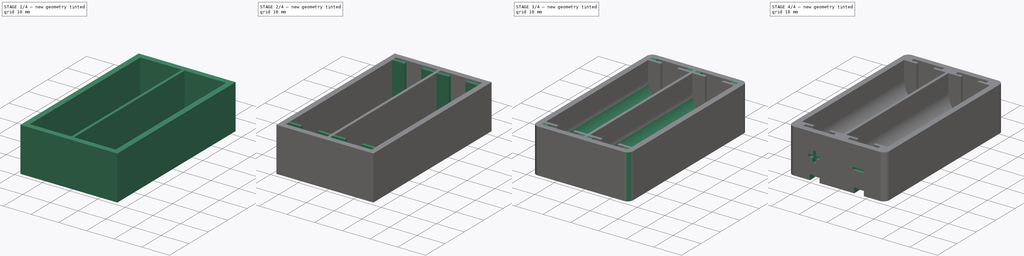
[diagram: build sequence overview — one tinted view per stage of 4, left to right]
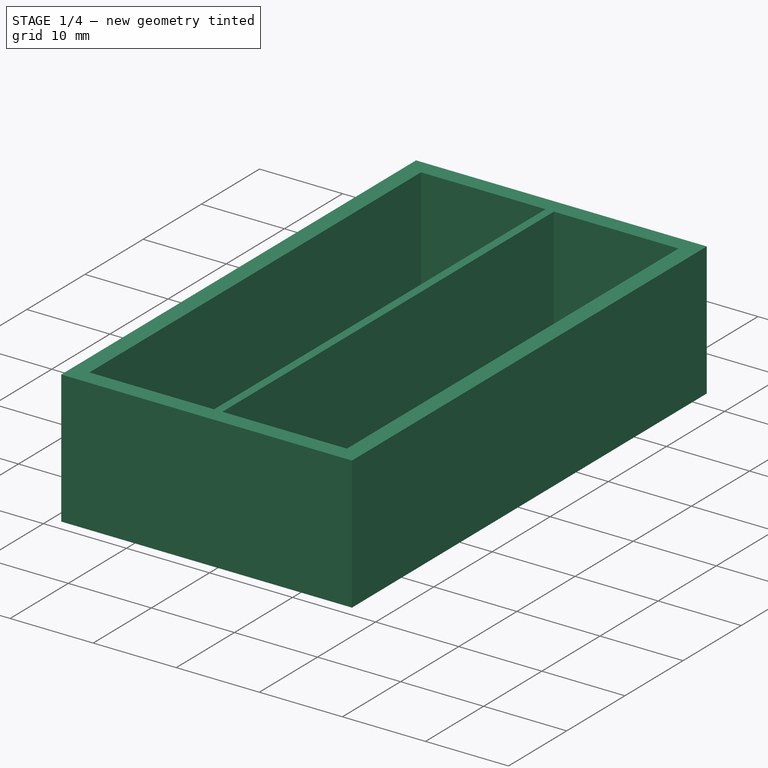
[diagram: stage 1 of 4 — iso view after this stage's code; geometry added in this stage tinted green]
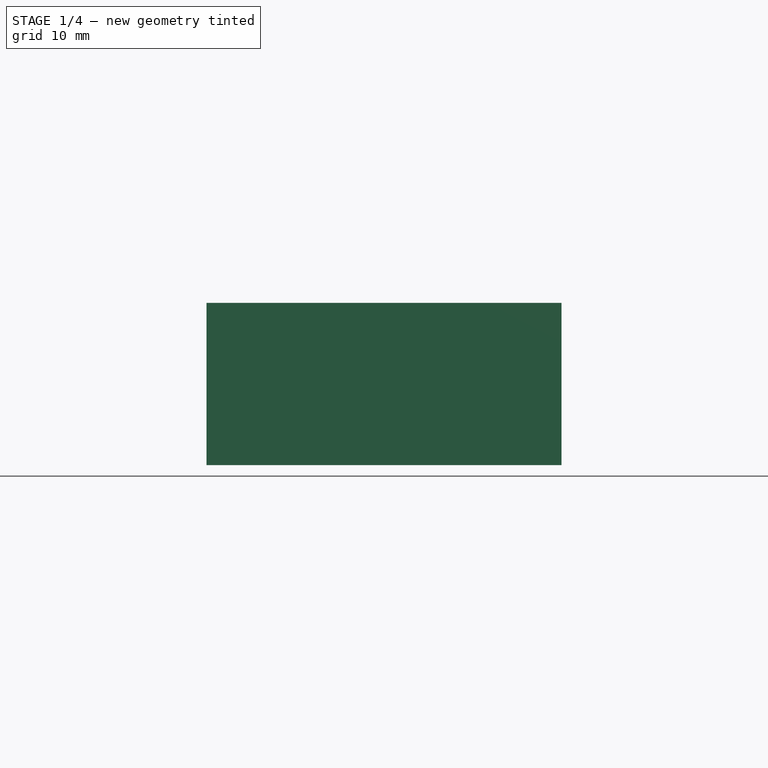
[diagram: stage 1 of 4 — front view after this stage's code; geometry added in this stage tinted green]
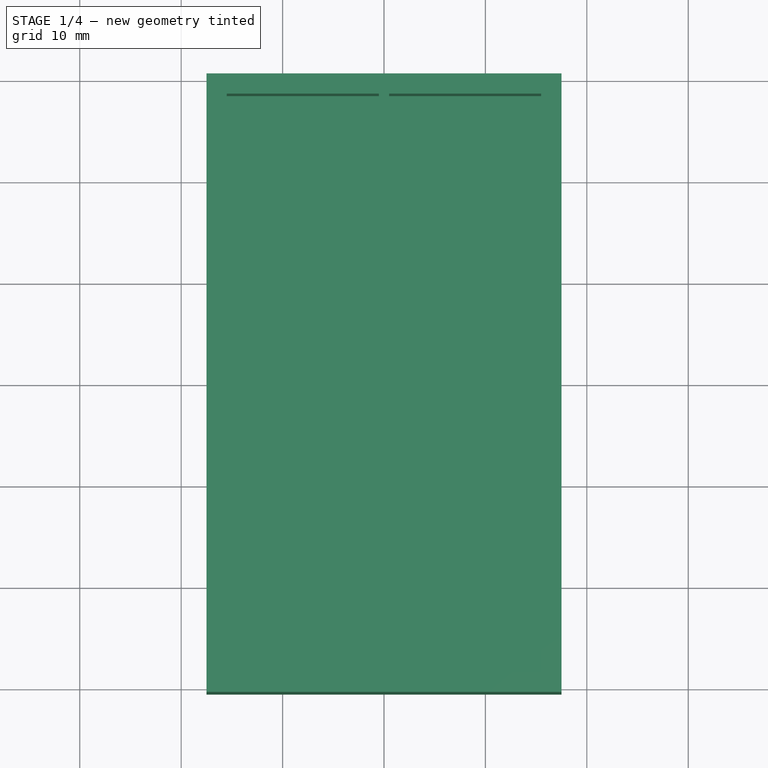
[diagram: stage 1 of 4 — top view after this stage's code; geometry added in this stage tinted green]
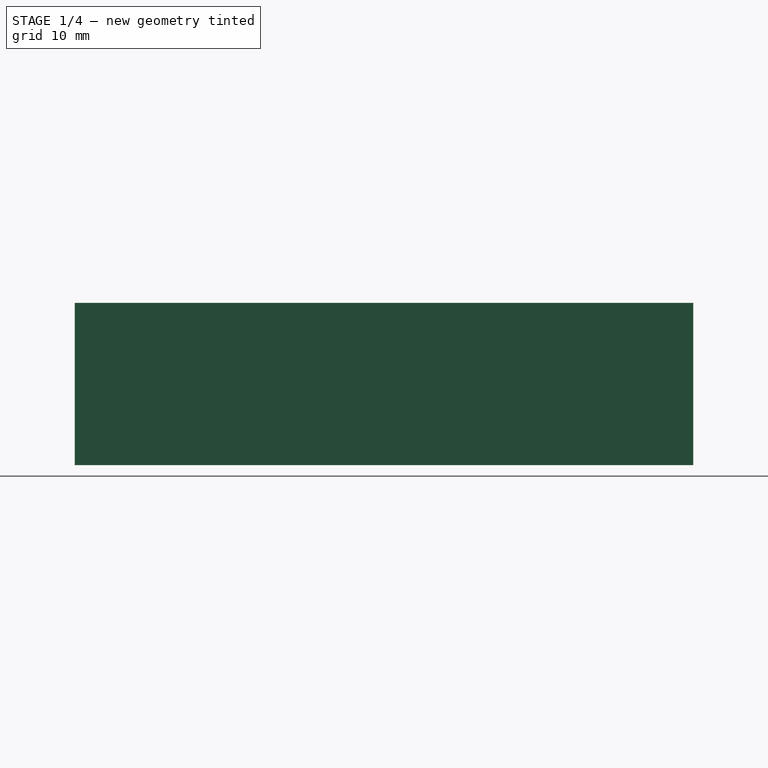
[diagram: stage 1 of 4 — right view after this stage's code; geometry added in this stage tinted green]
FCSTD DOCUMENT  (FreeCAD 1.0R39319 (Git))
Label: 2AA_CAD
License: All rights reserved
LicenseURL: http://en.wikipedia.org/wiki/All_rights_reserved
objects: Sketcher::SketchObject×10, PartDesign::Pad×5, PartDesign::Pocket×5, PartDesign::Fillet×2, PartDesign::Body×1
note: 57 computed .brp shape members not serialized (recipe doc carries the construction recipe); baked Part::Feature solids carry a one-line shape summary decoded from their .brp

FEATURE [Sketcher::SketchObject] Sketch
  ArcFitTolerance = 0
  AttachmentSupport = -> [XY_Plane]
  FullyConstrained = true
  MakeInternals = false
  MapMode = 5
  sketch-geometry (5):
    g0: LineSegment StartX=-17.5 StartY=-30.5 StartZ=0 EndX=-17.5 EndY=30.5 EndZ=0
    g1: LineSegment StartX=-17.5 StartY=30.5 StartZ=0 EndX=17.5 EndY=30.5 EndZ=0
    g2: LineSegment StartX=17.5 StartY=30.5 StartZ=0 EndX=17.5 EndY=-30.5 EndZ=0
    g3: LineSegment StartX=17.5 StartY=-30.5 StartZ=0 EndX=-17.5 EndY=-30.5 EndZ=0
    g4: GeomPoint [constr] X=0 Y=0 Z=0
  constraints (12):
    c: Coincident(g0,g1)
    c: Coincident(g1,g2)
    c: Coincident(g2,g3)
    c: Coincident(g3,g0)
    c: Horizontal(g1)
    c: Horizontal(g3)
    c: Vertical(g0)
    c: Vertical(g2)
    c: Symmetric(g1,g0,g4)
    c: Coincident(g4,g-1)
    c: DistanceX(g1,g1) = 35
    c: DistanceY(g2,g2) = 61
FEATURE [PartDesign::Pad] Pad
  Direction = (0,0,1)
  Length = 16
  Length2 = 10
  Profile = -> Sketch
  ReferenceAxis = -> Sketch [N_Axis]
  Suppressed = false
  Type = 0
FEATURE [Sketcher::SketchObject] Sketch001
  ArcFitTolerance = 0
  AttachmentSupport = -> [Pad]
  FullyConstrained = true
  MakeInternals = false
  MapMode = 5
  Placement = pos=(0,0,16) rot=(0,0,1;0rad)
  sketch-geometry (5):
    g0: LineSegment StartX=-15.5 StartY=-28.5 StartZ=0 EndX=-15.5 EndY=28.5 EndZ=0
    g1: LineSegment StartX=-15.5 StartY=28.5 StartZ=0 EndX=15.5 EndY=28.5 EndZ=0
    g2: LineSegment StartX=15.5 StartY=28.5 StartZ=0 EndX=15.5 EndY=-28.5 EndZ=0
    g3: LineSegment StartX=15.5 StartY=-28.5 StartZ=0 EndX=-15.5 EndY=-28.5 EndZ=0
    g4: GeomPoint [constr] X=0 Y=0 Z=0
  constraints (12):
    c: Coincident(g0,g1)
    c: Coincident(g1,g2)
    c: Coincident(g2,g3)
    c: Coincident(g3,g0)
    c: Horizontal(g1)
    c: Horizontal(g3)
    c: Vertical(g0)
    c: Vertical(g2)
    c: Symmetric(g1,g0,g4)
    c: Coincident(g4,g-1)
    c: DistanceX(g1,g1) = 31
    c: DistanceY(g2,g2) = 57
FEATURE [PartDesign::Pocket] Pocket
  BaseFeature = -> Pad
  Direction = (0,0,-1)
  Length = 14
  Length2 = 5
  Profile = -> Sketch001
  ReferenceAxis = -> Sketch001 [N_Axis]
  Suppressed = false
  Type = 0
FEATURE [Sketcher::SketchObject] Sketch002
  ArcFitTolerance = 0
  AttachmentSupport = -> [Pocket]
  ExternalGeometry = -> [Pocket]
  FullyConstrained = true
  MakeInternals = false
  MapMode = 5
  Placement = pos=(0,0,2) rot=(0,0,1;0rad)
  sketch-geometry (5):
    g0: LineSegment StartX=-0.5 StartY=-28.5 StartZ=0 EndX=-0.5 EndY=28.5 EndZ=0
    g1: LineSegment StartX=-0.5 StartY=28.5 StartZ=0 EndX=0.5 EndY=28.5 EndZ=0
    g2: LineSegment StartX=0.5 StartY=28.5 StartZ=0 EndX=0.5 EndY=-28.5 EndZ=0
    g3: LineSegment StartX=0.5 StartY=-28.5 StartZ=0 EndX=-0.5 EndY=-28.5 EndZ=0
    g4: GeomPoint [constr] X=0 Y=0 Z=0
  constraints (12):
    c: Coincident(g0,g1)
    c: Coincident(g1,g2)
    c: Coincident(g2,g3)
    c: Coincident(g3,g0)
    c: Horizontal(g1)
    c: Horizontal(g3)
    c: Vertical(g0)
    c: Vertical(g2)
    c: Symmetric(g1,g0,g4)
    c: Coincident(g4,g-1)
    c: PointOnObject(g1,g-3)
    c: DistanceX(g1,g1) = 1
FEATURE [PartDesign::Pad] Pad001
  BaseFeature = -> Pocket
  Direction = (0,0,1)
  Length = 14
  Length2 = 10
  Profile = -> Sketch002
  ReferenceAxis = -> Sketch002 [N_Axis]
  Suppressed = false
  Type = 0
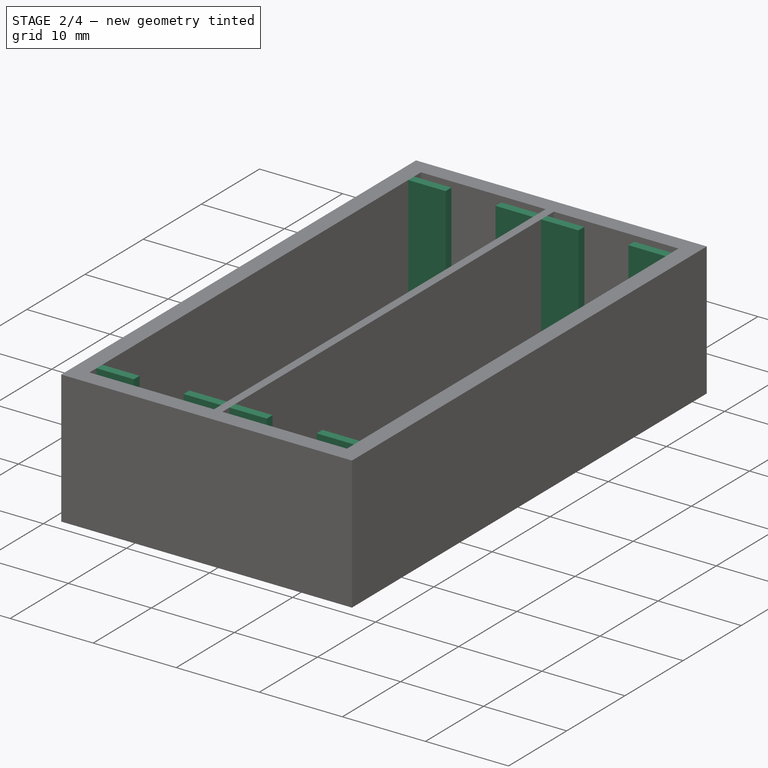
[diagram: stage 2 of 4 — iso view after this stage's code; geometry added in this stage tinted green]
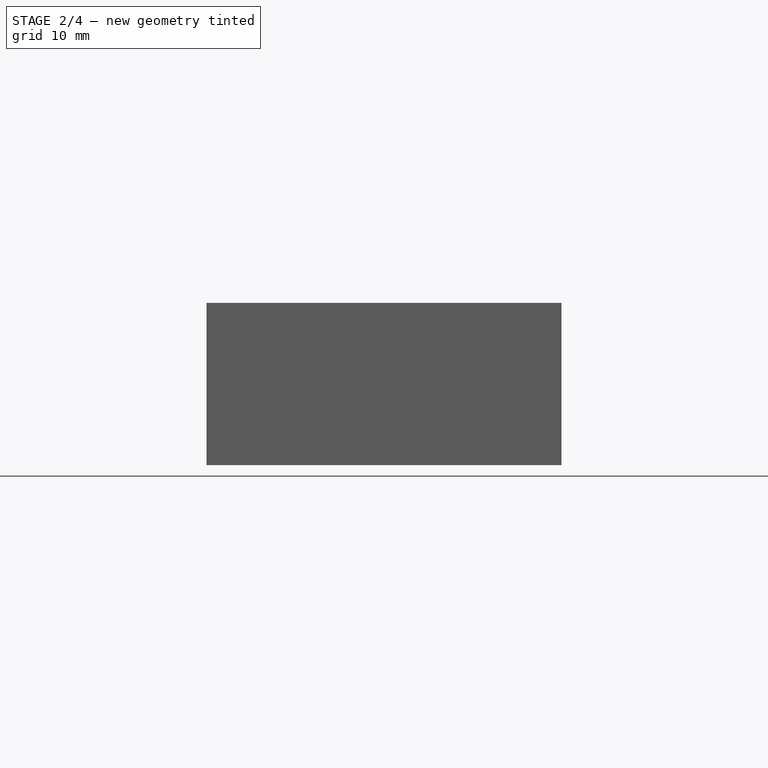
[diagram: stage 2 of 4 — front view after this stage's code; geometry added in this stage tinted green]
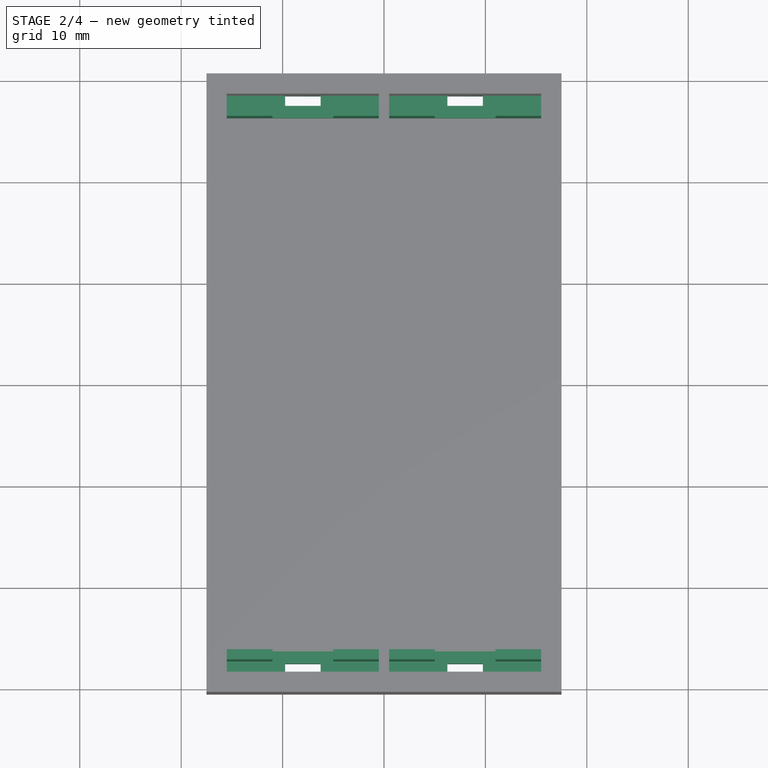
[diagram: stage 2 of 4 — top view after this stage's code; geometry added in this stage tinted green]
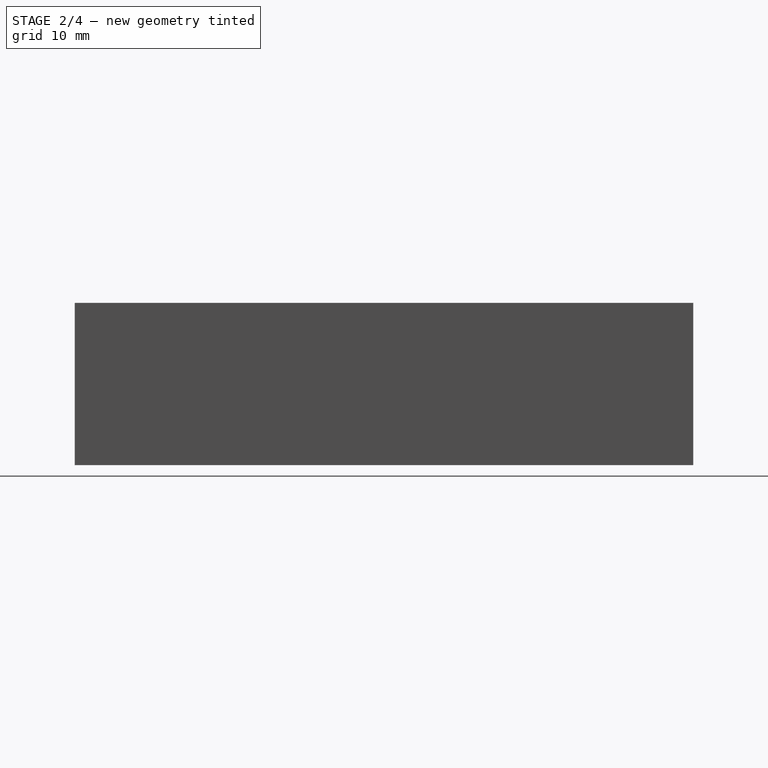
[diagram: stage 2 of 4 — right view after this stage's code; geometry added in this stage tinted green]
FEATURE [Sketcher::SketchObject] Sketch003
  ArcFitTolerance = 0
  AttachmentSupport = -> [Pad001]
  ExternalGeometry = -> [Pad001]
  FullyConstrained = true
  MakeInternals = false
  MapMode = 5
  Placement = pos=(0,0,2) rot=(0,0,1;0rad)
  sketch-geometry (16):
    g0: LineSegment StartX=15.5 StartY=28.5 StartZ=0 EndX=0.5 EndY=28.5 EndZ=0
    g1: LineSegment StartX=0.5 StartY=28.5 StartZ=0 EndX=0.5 EndY=26.3 EndZ=0
    g2: LineSegment StartX=0.5 StartY=26.3 StartZ=0 EndX=15.5 EndY=26.3 EndZ=0
    g3: LineSegment StartX=15.5 StartY=26.3 StartZ=0 EndX=15.5 EndY=28.5 EndZ=0
    g4: LineSegment StartX=-0.5 StartY=28.5 StartZ=0 EndX=-15.5 EndY=28.5 EndZ=0
    g5: LineSegment StartX=-15.5 StartY=28.5 StartZ=0 EndX=-15.5 EndY=26.3 EndZ=0
    g6: LineSegment StartX=-15.5 StartY=26.3 StartZ=0 EndX=-0.5 EndY=26.3 EndZ=0
    g7: LineSegment StartX=-0.5 StartY=26.3 StartZ=0 EndX=-0.5 EndY=28.5 EndZ=0
    g8: LineSegment StartX=15.5 StartY=-28.5 StartZ=0 EndX=0.5 EndY=-28.5 EndZ=0
    g9: LineSegment StartX=0.5 StartY=-28.5 StartZ=0 EndX=0.5 EndY=-26.3 EndZ=0
    g10: LineSegment StartX=0.5 StartY=-26.3 StartZ=0 EndX=15.5 EndY=-26.3 EndZ=0
    g11: LineSegment StartX=15.5 StartY=-26.3 StartZ=0 EndX=15.5 EndY=-28.5 EndZ=0
    g12: LineSegment StartX=-0.5 StartY=-28.5 StartZ=0 EndX=-15.5 EndY=-28.5 EndZ=0
    g13: LineSegment StartX=-15.5 StartY=-28.5 StartZ=0 EndX=-15.5 EndY=-26.3 EndZ=0
    g14: LineSegment StartX=-15.5 StartY=-26.3 StartZ=0 EndX=-0.5 EndY=-26.3 EndZ=0
    g15: LineSegment StartX=-0.5 StartY=-26.3 StartZ=0 EndX=-0.5 EndY=-28.5 EndZ=0
  constraints (44):
    c: Coincident(g0,g1)
    c: Coincident(g1,g2)
    c: Coincident(g2,g3)
    c: Coincident(g3,g0)
    c: Horizontal(g0)
    c: Horizontal(g2)
    c: Vertical(g1)
    c: Vertical(g3)
    c: Coincident(g0,g-8)
    c: PointOnObject(g1,g-5)
    c: DistanceY(g1,g1) = 2.2
    c: Coincident(g4,g5)
    c: Coincident(g5,g6)
    c: Coincident(g6,g7)
    c: Coincident(g7,g4)
    c: Horizontal(g4)
    c: Horizontal(g6)
    c: Vertical(g5)
    c: Vertical(g7)
    c: Coincident(g4,g-7)
    c: PointOnObject(g5,g-6)
    c: DistanceY(g5,g5) = 2.2
    c: Coincident(g8,g9)
    c: Coincident(g9,g10)
    c: Coincident(g10,g11)
    c: Coincident(g11,g8)
    c: Horizontal(g8)
    c: Horizontal(g10)
    c: Vertical(g9)
    c: Vertical(g11)
    c: Coincident(g8,g-9)
    c: PointOnObject(g9,g-5)
    c: DistanceY(g9,g9) = 2.2
    c: Coincident(g12,g13)
    c: Coincident(g13,g14)
    c: Coincident(g14,g15)
    c: Coincident(g15,g12)
    c: Horizontal(g12)
    c: Horizontal(g14)
    c: Vertical(g13)
    c: Vertical(g15)
    c: Coincident(g12,g-10)
    c: PointOnObject(g13,g-6)
    c: DistanceY(g13,g13) = 2.2
FEATURE [PartDesign::Pad] Pad002
  BaseFeature = -> Pad001
  Direction = (0,0,1)
  Length = 2
  Length2 = 10
  Profile = -> Sketch003
  ReferenceAxis = -> Sketch003 [N_Axis]
  Suppressed = false
  Type = 0
FEATURE [Sketcher::SketchObject] Sketch004
  ArcFitTolerance = 0
  AttachmentSupport = -> [Pad002]
  ExternalGeometry = -> [Pad002]
  FullyConstrained = true
  MakeInternals = false
  MapMode = 5
  Placement = pos=(0,0,4) rot=(0,0,1;0rad)
  sketch-geometry (16):
    g0: LineSegment StartX=6.25 StartY=28.5 StartZ=0 EndX=9.75 EndY=28.5 EndZ=0
    g1: LineSegment StartX=9.75 StartY=28.5 StartZ=0 EndX=9.75 EndY=27.5 EndZ=0
    g2: LineSegment StartX=9.75 StartY=27.5 StartZ=0 EndX=6.25 EndY=27.5 EndZ=0
    g3: LineSegment StartX=6.25 StartY=27.5 StartZ=0 EndX=6.25 EndY=28.5 EndZ=0
    g4: LineSegment StartX=-9.75 StartY=28.5 StartZ=0 EndX=-6.25 EndY=28.5 EndZ=0
    g5: LineSegment StartX=-6.25 StartY=28.5 StartZ=0 EndX=-6.25 EndY=27.5 EndZ=0
    g6: LineSegment StartX=-6.25 StartY=27.5 StartZ=0 EndX=-9.75 EndY=27.5 EndZ=0
    g7: LineSegment StartX=-9.75 StartY=27.5 StartZ=0 EndX=-9.75 EndY=28.5 EndZ=0
    g8: LineSegment StartX=9.75 StartY=-28.5 StartZ=0 EndX=6.25 EndY=-28.5 EndZ=0
    g9: LineSegment StartX=6.25 StartY=-28.5 StartZ=0 EndX=6.25 EndY=-27.5 EndZ=0
    g10: LineSegment StartX=6.25 StartY=-27.5 StartZ=0 EndX=9.75 EndY=-27.5 EndZ=0
    g11: LineSegment StartX=9.75 StartY=-27.5 StartZ=0 EndX=9.75 EndY=-28.5 EndZ=0
    g12: LineSegment StartX=-9.75 StartY=-28.5 StartZ=0 EndX=-6.25 EndY=-28.5 EndZ=0
    g13: LineSegment StartX=-6.25 StartY=-28.5 StartZ=0 EndX=-6.25 EndY=-27.5 EndZ=0
    g14: LineSegment StartX=-6.25 StartY=-27.5 StartZ=0 EndX=-9.75 EndY=-27.5 EndZ=0
    g15: LineSegment StartX=-9.75 StartY=-27.5 StartZ=0 EndX=-9.75 EndY=-28.5 EndZ=0
  constraints (48):
    c: Coincident(g0,g1)
    c: Coincident(g1,g2)
    c: Coincident(g2,g3)
    c: Coincident(g3,g0)
    c: Horizontal(g0)
    c: Horizontal(g2)
    c: Vertical(g1)
    c: Vertical(g3)
    c: PointOnObject(g0,g-3)
    c: DistanceX(g2,g2) = 3.5
    c: DistanceX(g-9,g2) = 5.75
    c: Coincident(g4,g5)
    c: Coincident(g5,g6)
    c: Coincident(g6,g7)
    c: Coincident(g7,g4)
    c: Horizontal(g4)
    c: Horizontal(g6)
    c: Vertical(g5)
    c: Vertical(g7)
    c: PointOnObject(g4,g-4)
    c: DistanceY(g3,g3) = 1
    c: DistanceY(g5,g5) = 1
    c: DistanceX(g-10,g6) = 5.75
    c: DistanceX(g6,g6) = 3.5
    c: Coincident(g8,g9)
    c: Coincident(g9,g10)
    c: Coincident(g10,g11)
    c: Coincident(g11,g8)
    c: Horizontal(g8)
    c: Horizontal(g10)
    c: Vertical(g9)
    c: Vertical(g11)
    c: PointOnObject(g8,g-7)
    c: DistanceX(g10,g10) = 3.5
    c: DistanceX(g10,g-5) = 5.75
    c: DistanceY(g11,g11) = 1
    c: Coincident(g12,g13)
    c: Coincident(g13,g14)
    c: Coincident(g14,g15)
    c: Coincident(g15,g12)
    c: Horizontal(g12)
    c: Horizontal(g14)
    c: Vertical(g13)
    c: Vertical(g15)
    c: PointOnObject(g12,g-6)
    c: DistanceY(g13,g13) = 1
    c: DistanceX(g14,g14) = 3.5
    c: DistanceX(g13,g-8) = 5.75
FEATURE [PartDesign::Pocket] Pocket001
  BaseFeature = -> Pad002
  Direction = (0,0,-1)
  Length = 5
  Length2 = 5
  Profile = -> Sketch004
  ReferenceAxis = -> Sketch004 [N_Axis]
  Suppressed = false
  Type = 0
FEATURE [Sketcher::SketchObject] Sketch005
  ArcFitTolerance = 0
  AttachmentSupport = -> [Pocket001]
  ExternalGeometry = -> [Pocket001]
  FullyConstrained = true
  MakeInternals = false
  MapMode = 5
  Placement = pos=(0,0,4) rot=(0,0,1;0rad)
  sketch-geometry (32):
    g0: LineSegment StartX=-0.5 StartY=26.3 StartZ=0 EndX=-5 EndY=26.3 EndZ=0
    g1: LineSegment StartX=-5 StartY=26.3 StartZ=0 EndX=-5 EndY=27.3 EndZ=0
    g2: LineSegment StartX=-5 StartY=27.3 StartZ=0 EndX=-0.5 EndY=27.3 EndZ=0
    g3: LineSegment StartX=-0.5 StartY=27.3 StartZ=0 EndX=-0.5 EndY=26.3 EndZ=0
    g4: LineSegment StartX=-15.5 StartY=26.3 StartZ=0 EndX=-11 EndY=26.3 EndZ=0
    g5: LineSegment StartX=-11 StartY=26.3 StartZ=0 EndX=-11 EndY=27.3 EndZ=0
    g6: LineSegment StartX=-11 StartY=27.3 StartZ=0 EndX=-15.5 EndY=27.3 EndZ=0
    g7: LineSegment StartX=-15.5 StartY=27.3 StartZ=0 EndX=-15.5 EndY=26.3 EndZ=0
    g8: LineSegment StartX=0.5 StartY=26.3 StartZ=0 EndX=5 EndY=26.3 EndZ=0
    g9: LineSegment StartX=5 StartY=26.3 StartZ=0 EndX=5 EndY=27.3 EndZ=0
    g10: LineSegment StartX=5 StartY=27.3 StartZ=0 EndX=0.5 EndY=27.3 EndZ=0
    g11: LineSegment StartX=0.5 StartY=27.3 StartZ=0 EndX=0.5 EndY=26.3 EndZ=0
    g12: LineSegment StartX=15.5 StartY=26.3 StartZ=0 EndX=11 EndY=26.3 EndZ=0
    g13: LineSegment StartX=11 StartY=26.3 StartZ=0 EndX=11 EndY=27.3 EndZ=0
    g14: LineSegment StartX=11 StartY=27.3 StartZ=0 EndX=15.5 EndY=27.3 EndZ=0
    g15: LineSegment StartX=15.5 StartY=27.3 StartZ=0 EndX=15.5 EndY=26.3 EndZ=0
    g16: LineSegment StartX=15.5 StartY=-26.3 StartZ=0 EndX=11 EndY=-26.3 EndZ=0
    g17: LineSegment StartX=11 StartY=-26.3 StartZ=0 EndX=11 EndY=-27.3 EndZ=0
    g18: LineSegment StartX=11 StartY=-27.3 StartZ=0 EndX=15.5 EndY=-27.3 EndZ=0
    g19: LineSegment StartX=15.5 StartY=-27.3 StartZ=0 EndX=15.5 EndY=-26.3 EndZ=0
    g20: LineSegment StartX=-15.5 StartY=-26.3 StartZ=0 EndX=-11 EndY=-26.3 EndZ=0
    g21: LineSegment StartX=-11 StartY=-26.3 StartZ=0 EndX=-11 EndY=-27.3 EndZ=0
    g22: LineSegment StartX=-11 StartY=-27.3 StartZ=0 EndX=-15.5 EndY=-27.3 EndZ=0
    g23: LineSegment StartX=-15.5 StartY=-27.3 StartZ=0 EndX=-15.5 EndY=-26.3 EndZ=0
    g24: LineSegment StartX=-0.5 StartY=-26.3 StartZ=0 EndX=-5 EndY=-26.3 EndZ=0
    g25: LineSegment StartX=-5 StartY=-26.3 StartZ=0 EndX=-5 EndY=-27.3 EndZ=0
    g26: LineSegment StartX=-5 StartY=-27.3 StartZ=0 EndX=-0.5 EndY=-27.3 EndZ=0
    g27: LineSegment StartX=-0.5 StartY=-27.3 StartZ=0 EndX=-0.5 EndY=-26.3 EndZ=0
    g28: LineSegment StartX=0.5 StartY=-26.3 StartZ=0 EndX=5 EndY=-26.3 EndZ=0
    g29: LineSegment StartX=5 StartY=-26.3 StartZ=0 EndX=5 EndY=-27.3 EndZ=0
    g30: LineSegment StartX=5 StartY=-27.3 StartZ=0 EndX=0.5 EndY=-27.3 EndZ=0
    g31: LineSegment StartX=0.5 StartY=-27.3 StartZ=0 EndX=0.5 EndY=-26.3 EndZ=0
  constraints (88):
    c: Coincident(g0,g1)
    c: Coincident(g1,g2)
    c: Coincident(g2,g3)
    c: Coincident(g3,g0)
    c: Horizontal(g0)
    c: Horizontal(g2)
    c: Vertical(g1)
    c: Vertical(g3)
    c: Coincident(g0,g-8)
    c: Coincident(g4,g5)
    c: Coincident(g5,g6)
    c: Coincident(g6,g7)
    c: Coincident(g7,g4)
    c: Horizontal(g4)
    c: Horizontal(g6)
    c: Vertical(g5)
    c: Vertical(g7)
    c: Coincident(g4,g-8)
    c: Coincident(g8,g9)
    c: Coincident(g9,g10)
    c: Coincident(g10,g11)
    c: Coincident(g11,g8)
    c: Horizontal(g8)
    c: Horizontal(g10)
    c: Vertical(g9)
    c: Vertical(g11)
    c: Coincident(g8,g-9)
    c: Coincident(g12,g13)
    c: Coincident(g13,g14)
    c: Coincident(g14,g15)
    c: Coincident(g15,g12)
    c: Horizontal(g12)
    c: Horizontal(g14)
    c: Vertical(g13)
    c: Vertical(g15)
    c: Coincident(g12,g-9)
    c: Coincident(g16,g17)
    c: Coincident(g17,g18)
    c: Coincident(g18,g19)
    c: Coincident(g19,g16)
    c: Horizontal(g16)
    c: Horizontal(g18)
    c: Vertical(g17)
    c: Vertical(g19)
    c: Coincident(g16,g-11)
    c: Coincident(g20,g21)
    c: Coincident(g21,g22)
    c: Coincident(g22,g23)
    c: Coincident(g23,g20)
    c: Horizontal(g20)
    c: Horizontal(g22)
    c: Vertical(g21)
    c: Vertical(g23)
    c: Coincident(g20,g-13)
    c: Coincident(g24,g25)
    c: Coincident(g25,g26)
    c: Coincident(g26,g27)
    c: Coincident(g27,g24)
    c: Horizontal(g24)
    c: Horizontal(g26)
    c: Vertical(g25)
    c: Vertical(g27)
    c: Coincident(g24,g-13)
    c: Coincident(g28,g29)
    c: Coincident(g29,g30)
    c: Coincident(g30,g31)
    c: Coincident(g31,g28)
    c: Horizontal(g28)
    c: Horizontal(g30)
    c: Vertical(g29)
    c: Vertical(g31)
    c: Coincident(g28,g-11)
    c: DistanceY(g13,g13) = 1
    c: DistanceY(g9,g9) = 1
    c: DistanceY(g1,g1) = 1
    c: DistanceY(g5,g5) = 1
    c: DistanceY(g21,g21) = 1
    c: DistanceY(g25,g25) = 1
    c: DistanceY(g29,g29) = 1
    c: DistanceY(g17,g17) = 1
    c: DistanceX(g4,g4) = 4.5
    c: DistanceX(g0,g0) = 4.5
    c: DistanceX(g12,g12) = 4.5
    c: DistanceX(g8,g8) = 4.5
    c: DistanceX(g20,g20) = 4.5
    c: DistanceX(g16,g16) = 4.5
    c: DistanceX(g28,g28) = 4.5
    c: DistanceX(g24,g24) = 4.5
FEATURE [PartDesign::Pad] Pad003
  BaseFeature = -> Pocket001
  Direction = (0,0,1)
  Length = 12
  Length2 = 10
  Profile = -> Sketch005
  ReferenceAxis = -> Sketch005 [N_Axis]
  Suppressed = false
  Type = 0
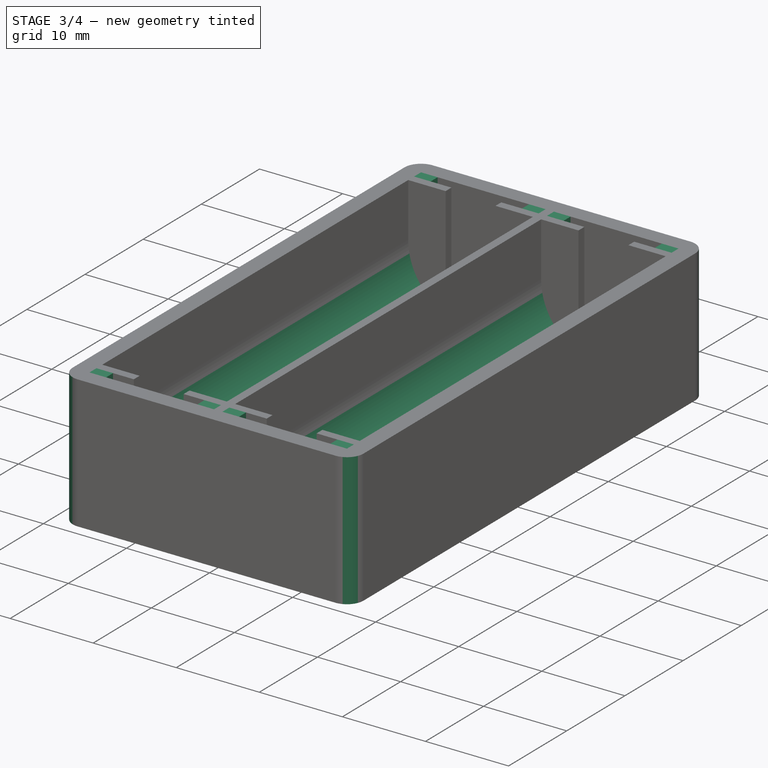
[diagram: stage 3 of 4 — iso view after this stage's code; geometry added in this stage tinted green]
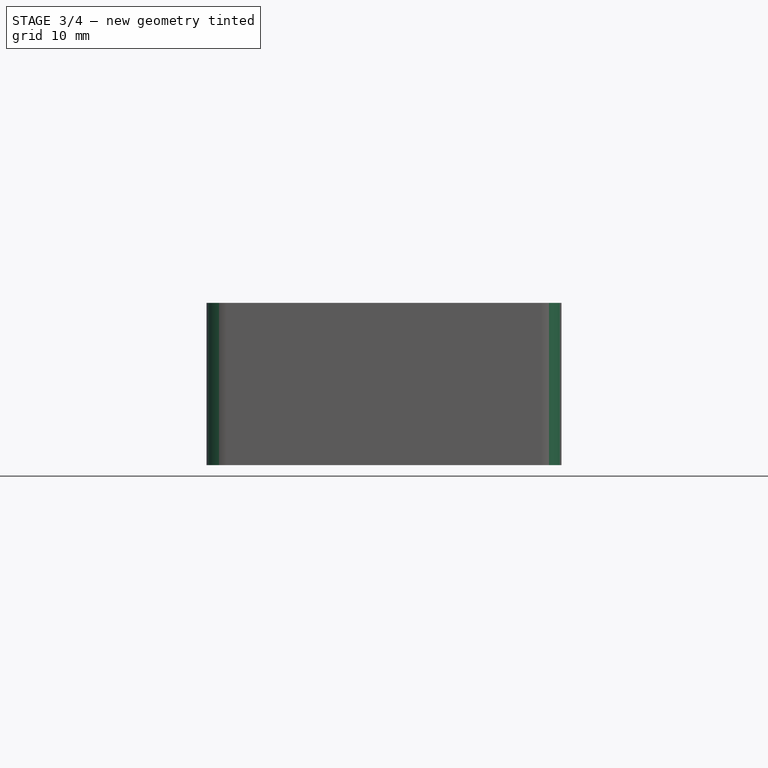
[diagram: stage 3 of 4 — front view after this stage's code; geometry added in this stage tinted green]
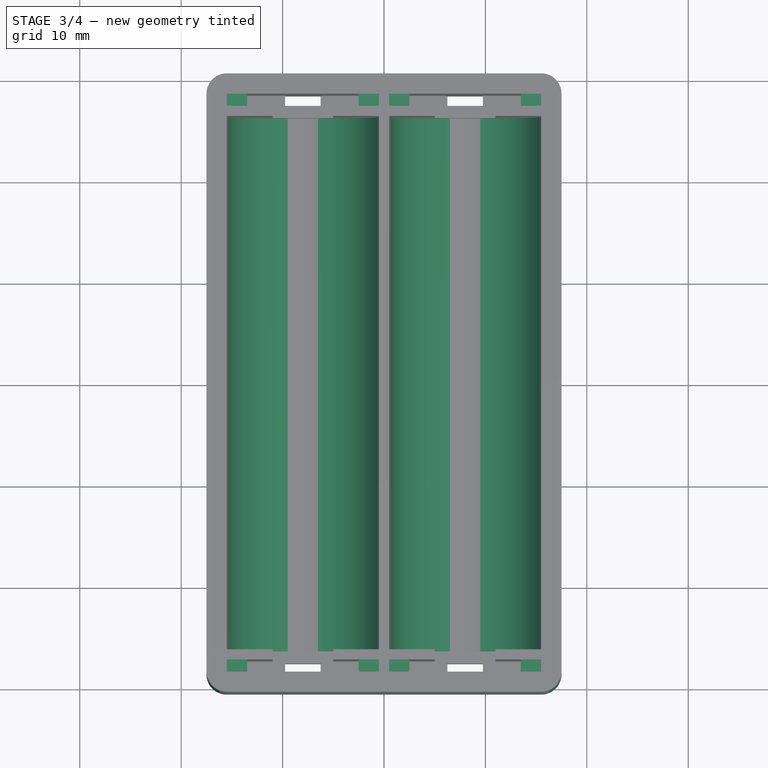
[diagram: stage 3 of 4 — top view after this stage's code; geometry added in this stage tinted green]
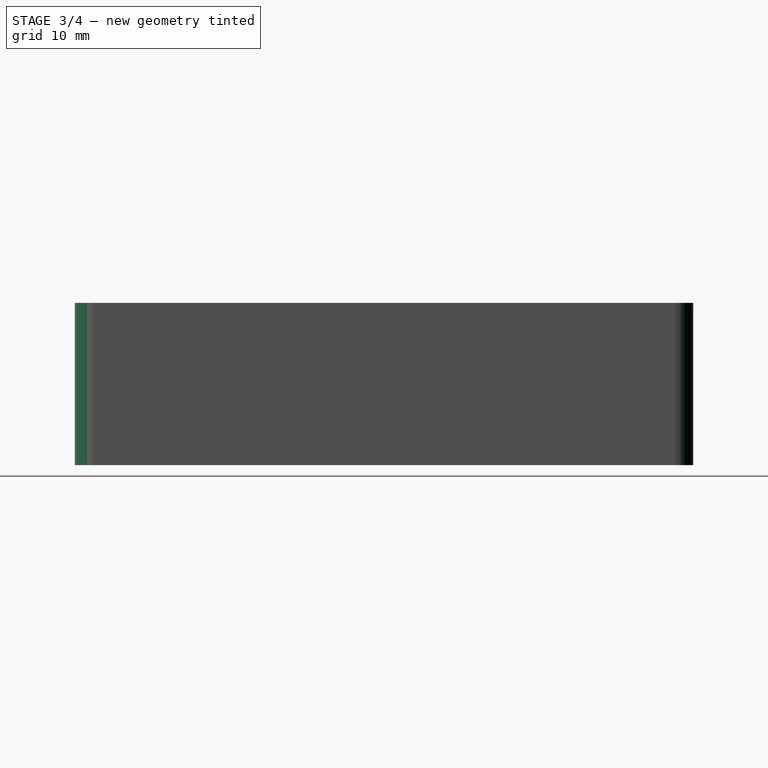
[diagram: stage 3 of 4 — right view after this stage's code; geometry added in this stage tinted green]
FEATURE [PartDesign::Fillet] Fillet
  Base = -> Pad003 [Edge2,Edge8,Edge5,Edge1]
  BaseFeature = -> Pad003
  Radius = 2
  SupportTransform = false
  Suppressed = false
  UseAllEdges = false
FEATURE [PartDesign::Fillet] Fillet001
  Base = -> Fillet [Edge137,Edge175,Edge188,Edge115]
  BaseFeature = -> Fillet
  Radius = 7.49
  SupportTransform = false
  Suppressed = false
  UseAllEdges = false
FEATURE [Sketcher::SketchObject] Sketch006
  ArcFitTolerance = 0
  AttachmentSupport = -> [Fillet001]
  ExternalGeometry = -> [Fillet001]
  FullyConstrained = true
  MakeInternals = false
  MapMode = 5
  Placement = pos=(0,0,4) rot=(0,0,1;0rad)
  sketch-geometry (32):
    g0: LineSegment StartX=-15.5 StartY=27.3 StartZ=0 EndX=-13.5 EndY=27.3 EndZ=0
    g1: LineSegment StartX=-13.5 StartY=27.3 StartZ=0 EndX=-13.5 EndY=28.5 EndZ=0
    g2: LineSegment StartX=-13.5 StartY=28.5 StartZ=0 EndX=-15.5 EndY=28.5 EndZ=0
    g3: LineSegment StartX=-15.5 StartY=28.5 StartZ=0 EndX=-15.5 EndY=27.3 EndZ=0
    g4: LineSegment StartX=-0.5 StartY=27.3 StartZ=0 EndX=-2.5 EndY=27.3 EndZ=0
    g5: LineSegment StartX=-2.5 StartY=27.3 StartZ=0 EndX=-2.5 EndY=28.5 EndZ=0
    g6: LineSegment StartX=-2.5 StartY=28.5 StartZ=0 EndX=-0.5 EndY=28.5 EndZ=0
    g7: LineSegment StartX=-0.5 StartY=28.5 StartZ=0 EndX=-0.5 EndY=27.3 EndZ=0
    g8: LineSegment StartX=0.5 StartY=27.3 StartZ=0 EndX=2.5 EndY=27.3 EndZ=0
    g9: LineSegment StartX=2.5 StartY=27.3 StartZ=0 EndX=2.5 EndY=28.5 EndZ=0
    g10: LineSegment StartX=2.5 StartY=28.5 StartZ=0 EndX=0.5 EndY=28.5 EndZ=0
    g11: LineSegment StartX=0.5 StartY=28.5 StartZ=0 EndX=0.5 EndY=27.3 EndZ=0
    g12: LineSegment StartX=15.5 StartY=27.3 StartZ=0 EndX=13.5 EndY=27.3 EndZ=0
    g13: LineSegment StartX=13.5 StartY=27.3 StartZ=0 EndX=13.5 EndY=28.5 EndZ=0
    g14: LineSegment StartX=13.5 StartY=28.5 StartZ=0 EndX=15.5 EndY=28.5 EndZ=0
    g15: LineSegment StartX=15.5 StartY=28.5 StartZ=0 EndX=15.5 EndY=27.3 EndZ=0
    g16: LineSegment StartX=15.5 StartY=-27.3 StartZ=0 EndX=13.5 EndY=-27.3 EndZ=0
    g17: LineSegment StartX=13.5 StartY=-27.3 StartZ=0 EndX=13.5 EndY=-28.5 EndZ=0
    g18: LineSegment StartX=13.5 StartY=-28.5 StartZ=0 EndX=15.5 EndY=-28.5 EndZ=0
    g19: LineSegment StartX=15.5 StartY=-28.5 StartZ=0 EndX=15.5 EndY=-27.3 EndZ=0
    g20: LineSegment StartX=0.5 StartY=-27.3 StartZ=0 EndX=2.5 EndY=-27.3 EndZ=0
    g21: LineSegment StartX=2.5 StartY=-27.3 StartZ=0 EndX=2.5 EndY=-28.5 EndZ=0
    g22: LineSegment StartX=2.5 StartY=-28.5 StartZ=0 EndX=0.5 EndY=-28.5 EndZ=0
    g23: LineSegment StartX=0.5 StartY=-28.5 StartZ=0 EndX=0.5 EndY=-27.3 EndZ=0
    g24: LineSegment StartX=-0.5 StartY=-27.3 StartZ=0 EndX=-2.5 EndY=-27.3 EndZ=0
    g25: LineSegment StartX=-2.5 StartY=-27.3 StartZ=0 EndX=-2.5 EndY=-28.5 EndZ=0
    g26: LineSegment StartX=-2.5 StartY=-28.5 StartZ=0 EndX=-0.5 EndY=-28.5 EndZ=0
    g27: LineSegment StartX=-0.5 StartY=-28.5 StartZ=0 EndX=-0.5 EndY=-27.3 EndZ=0
    g28: LineSegment StartX=-15.5 StartY=-27.3 StartZ=0 EndX=-13.5 EndY=-27.3 EndZ=0
    g29: LineSegment StartX=-13.5 StartY=-27.3 StartZ=0 EndX=-13.5 EndY=-28.5 EndZ=0
    g30: LineSegment StartX=-13.5 StartY=-28.5 StartZ=0 EndX=-15.5 EndY=-28.5 EndZ=0
    g31: LineSegment StartX=-15.5 StartY=-28.5 StartZ=0 EndX=-15.5 EndY=-27.3 EndZ=0
  constraints (88):
    c: Coincident(g0,g1)
    c: Coincident(g1,g2)
    c: Coincident(g2,g3)
    c: Coincident(g3,g0)
    c: Horizontal(g0)
    c: Horizontal(g2)
    c: Vertical(g1)
    c: Vertical(g3)
    c: Coincident(g0,g-3)
    c: PointOnObject(g1,g-4)
    c: Coincident(g4,g5)
    c: Coincident(g5,g6)
    c: Coincident(g6,g7)
    c: Coincident(g7,g4)
    c: Horizontal(g4)
    c: Horizontal(g6)
    c: Vertical(g5)
    c: Vertical(g7)
    c: Coincident(g4,g-5)
    c: PointOnObject(g5,g-4)
    c: Coincident(g8,g9)
    c: Coincident(g9,g10)
    c: Coincident(g10,g11)
    c: Coincident(g11,g8)
    c: Horizontal(g8)
    c: Horizontal(g10)
    c: Vertical(g9)
    c: Vertical(g11)
    c: Coincident(g8,g-6)
    c: PointOnObject(g9,g-7)
    c: Coincident(g12,g13)
    c: Coincident(g13,g14)
    c: Coincident(g14,g15)
    c: Coincident(g15,g12)
    c: Horizontal(g12)
    c: Horizontal(g14)
    c: Vertical(g13)
    c: Vertical(g15)
    c: Coincident(g12,g-8)
    c: PointOnObject(g13,g-7)
    c: Coincident(g16,g17)
    c: Coincident(g17,g18)
    c: Coincident(g18,g19)
    c: Coincident(g19,g16)
    c: Horizontal(g16)
    c: Horizontal(g18)
    c: Vertical(g17)
    c: Vertical(g19)
    c: Coincident(g16,g-14)
    c: PointOnObject(g17,g-12)
    c: Coincident(g20,g21)
    c: Coincident(g21,g22)
    c: Coincident(g22,g23)
    c: Coincident(g23,g20)
    c: Horizontal(g20)
    c: Horizontal(g22)
    c: Vertical(g21)
    c: Vertical(g23)
    c: Coincident(g20,g-13)
    c: PointOnObject(g21,g-12)
    c: Coincident(g24,g25)
    c: Coincident(g25,g26)
    c: Coincident(g26,g27)
    c: Coincident(g27,g24)
    c: Horizontal(g24)
    c: Horizontal(g26)
    c: Vertical(g25)
    c: Vertical(g27)
    c: Coincident(g24,g-11)
    c: PointOnObject(g25,g-10)
    c: Coincident(g28,g29)
    c: Coincident(g29,g30)
    c: Coincident(g30,g31)
    c: Coincident(g31,g28)
    c: Horizontal(g28)
    c: Horizontal(g30)
    c: Vertical(g29)
    c: Vertical(g31)
    c: Coincident(g28,g-9)
    c: PointOnObject(g29,g-10)
    c: DistanceX(g2,g2) = 2
    c: DistanceX(g4,g4) = 2
    c: DistanceX(g10,g10) = 2
    c: DistanceX(g14,g14) = 2
    c: DistanceX(g28,g28) = 2
    c: DistanceX(g24,g24) = 2
    c: DistanceX(g20,g20) = 2
    c: DistanceX(g16,g16) = 2
FEATURE [PartDesign::Pad] Pad004
  BaseFeature = -> Fillet001
  Direction = (0,0,1)
  Length = 12
  Length2 = 10
  Profile = -> Sketch006
  ReferenceAxis = -> Sketch006 [N_Axis]
  Suppressed = false
  Type = 0
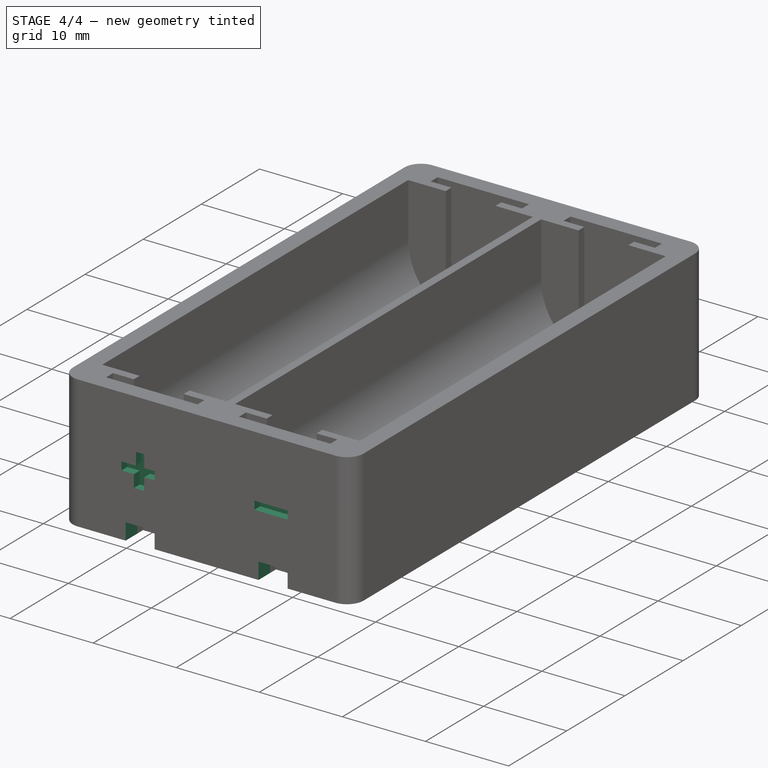
[diagram: stage 4 of 4 — iso view after this stage's code; geometry added in this stage tinted green]
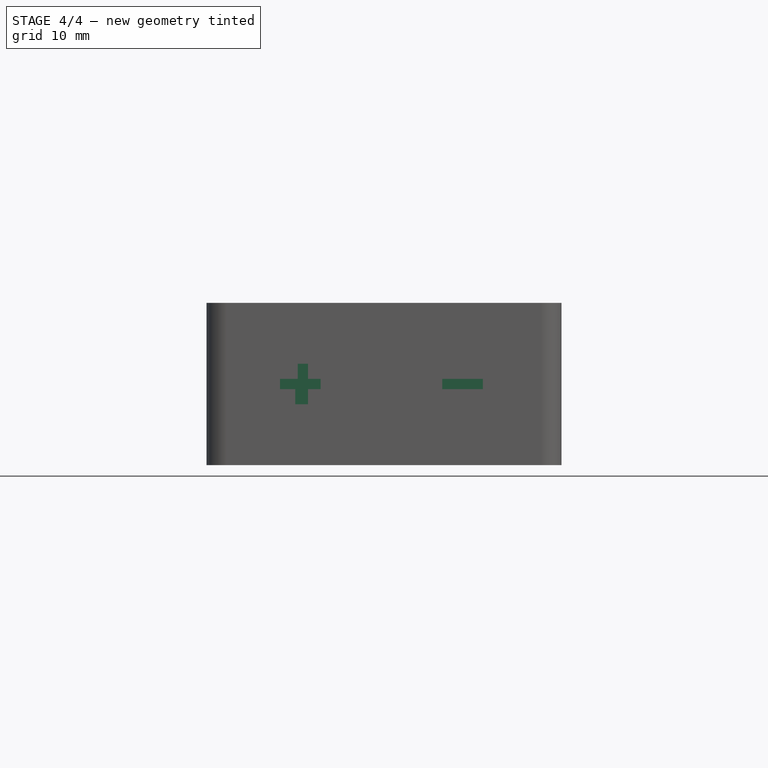
[diagram: stage 4 of 4 — front view after this stage's code; geometry added in this stage tinted green]
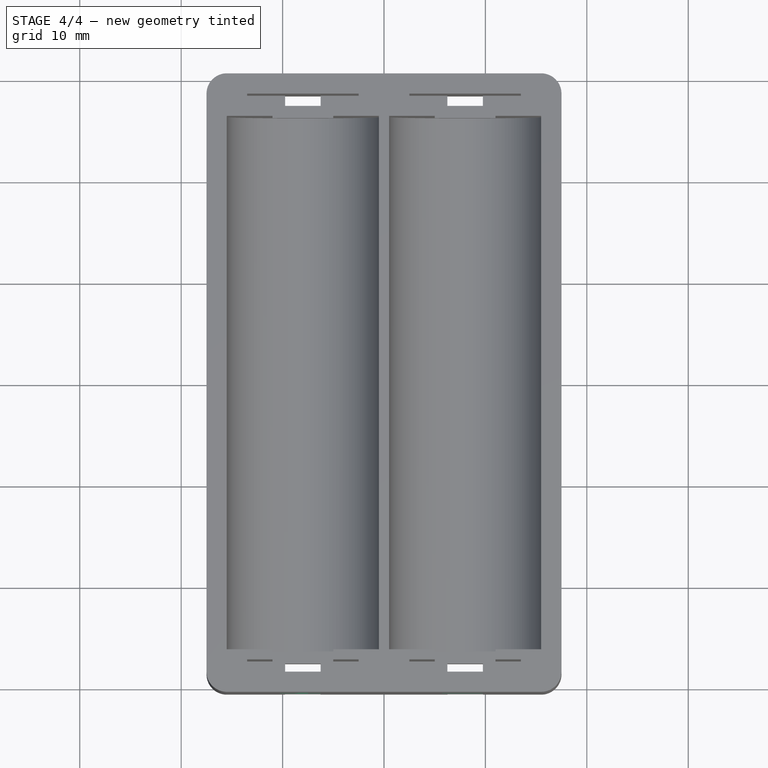
[diagram: stage 4 of 4 — top view after this stage's code; geometry added in this stage tinted green]
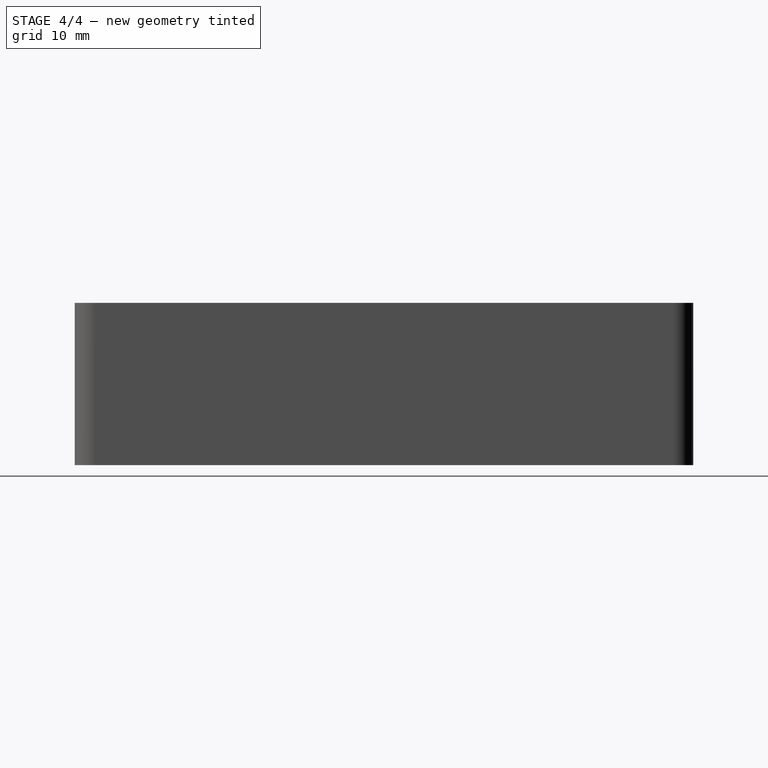
[diagram: stage 4 of 4 — right view after this stage's code; geometry added in this stage tinted green]
FEATURE [Sketcher::SketchObject] Sketch007
  ArcFitTolerance = 0
  AttachmentSupport = -> [Fillet]
  ExternalGeometry = -> [Fillet]
  FullyConstrained = true
  MakeInternals = false
  MapMode = 5
  Placement = pos=(0,0,0) rot=(1,0,0;3.14159rad)
  sketch-geometry (8):
    g0: LineSegment StartX=-9.75 StartY=28.5 StartZ=0 EndX=-6.25 EndY=28.5 EndZ=0
    g1: LineSegment StartX=-6.25 StartY=28.5 StartZ=0 EndX=-6.25 EndY=30.5 EndZ=0
    g2: LineSegment StartX=-6.25 StartY=30.5 StartZ=0 EndX=-9.75 EndY=30.5 EndZ=0
    g3: LineSegment StartX=-9.75 StartY=30.5 StartZ=0 EndX=-9.75 EndY=28.5 EndZ=0
    g4: LineSegment StartX=6.25 StartY=28.5 StartZ=0 EndX=9.75 EndY=28.5 EndZ=0
    g5: LineSegment StartX=9.75 StartY=28.5 StartZ=0 EndX=9.75 EndY=30.5 EndZ=0
    g6: LineSegment StartX=9.75 StartY=30.5 StartZ=0 EndX=6.25 EndY=30.5 EndZ=0
    g7: LineSegment StartX=6.25 StartY=30.5 StartZ=0 EndX=6.25 EndY=28.5 EndZ=0
  constraints (20):
    c: Coincident(g0,g1)
    c: Coincident(g1,g2)
    c: Coincident(g2,g3)
    c: Coincident(g3,g0)
    c: Horizontal(g2)
    c: Vertical(g1)
    c: Vertical(g3)
    c: Coincident(g0,g-3)
    c: PointOnObject(g1,g-4)
    c: Coincident(g0,g-3)
    c: Coincident(g4,g5)
    c: Coincident(g5,g6)
    c: Coincident(g6,g7)
    c: Coincident(g7,g4)
    c: Horizontal(g6)
    c: Vertical(g5)
    c: Vertical(g7)
    c: Coincident(g4,g-5)
    c: PointOnObject(g5,g-4)
    c: Coincident(g-5,g4)
FEATURE [PartDesign::Pocket] Pocket002
  BaseFeature = -> Pad004
  Direction = (0,0,1)
  Length = 2
  Length2 = 5
  Profile = -> Sketch007
  ReferenceAxis = -> Sketch007 [N_Axis]
  Suppressed = false
  Type = 0
FEATURE [Sketcher::SketchObject] Sketch008
  ArcFitTolerance = 0
  AttachmentSupport = -> [Pocket002]
  ExternalGeometry = -> [Pocket002]
  FullyConstrained = false
  MakeInternals = false
  MapMode = 5
  Placement = pos=(0,-30.5,0) rot=(1,0,0;1.5708rad)
  sketch-geometry (16):
    g0: LineSegment StartX=-10.25 StartY=8.5 StartZ=0 EndX=-8.5 EndY=8.5 EndZ=0
    g1: LineSegment StartX=-6.25 StartY=8.5 StartZ=0 EndX=-6.25 EndY=7.5 EndZ=0
    g2: LineSegment StartX=-6.25 StartY=7.5 StartZ=0 EndX=-7.5 EndY=7.5 EndZ=0
    g3: LineSegment StartX=-10.25 StartY=7.5 StartZ=0 EndX=-10.25 EndY=8.5 EndZ=0
    g4: LineSegment StartX=-8.5 StartY=10 StartZ=0 EndX=-7.5 EndY=10 EndZ=0
    g5: LineSegment StartX=-7.5 StartY=10 StartZ=0 EndX=-7.5 EndY=8.5 EndZ=0
    g6: LineSegment StartX=-7.5 StartY=6 StartZ=0 EndX=-8.75 EndY=6 EndZ=0
    g7: LineSegment StartX=-8.75 StartY=6 StartZ=0 EndX=-8.75 EndY=7.5 EndZ=0
    g8: LineSegment StartX=5.75 StartY=8.5 StartZ=0 EndX=9.75 EndY=8.5 EndZ=0
    g9: LineSegment StartX=9.75 StartY=8.5 StartZ=0 EndX=9.75 EndY=7.5 EndZ=0
    g10: LineSegment StartX=9.75 StartY=7.5 StartZ=0 EndX=5.75 EndY=7.5 EndZ=0
    g11: LineSegment StartX=5.75 StartY=7.5 StartZ=0 EndX=5.75 EndY=8.5 EndZ=0
    g12: LineSegment StartX=-7.5 StartY=8.5 StartZ=0 EndX=-6.25 EndY=8.5 EndZ=0
    g13: LineSegment StartX=-7.5 StartY=7.5 StartZ=0 EndX=-7.5 EndY=6 EndZ=0
    g14: LineSegment StartX=-8.75 StartY=7.5 StartZ=0 EndX=-10.25 EndY=7.5 EndZ=0
    g15: LineSegment StartX=-8.5 StartY=8.5 StartZ=0 EndX=-8.5 EndY=10 EndZ=0
  constraints (40):
    c: Coincident(g12,g1)
    c: Coincident(g1,g2)
    c: Coincident(g14,g3)
    c: Coincident(g3,g0)
    c: Horizontal(g0)
    c: Horizontal(g2)
    c: Vertical(g1)
    c: Vertical(g3)
    c: Coincident(g4,g5)
    c: Coincident(g13,g6)
    c: Coincident(g6,g7)
    c: Coincident(g15,g4)
    c: Horizontal(g4)
    c: Horizontal(g6)
    c: Vertical(g5)
    c: Vertical(g7)
    c: DistanceX(g4,g4) = 1
    c: DistanceY(g1,g1) = 1
    c: DistanceY(g7,g15) = 4
    c: DistanceX(g0,g12) = 4
    c: DistanceX(g14,g-3) = 0.5
    c: DistanceX(g-3,g6) = 1
    c: DistanceY(g-3,g13) = 4
    c: DistanceY(g-3,g1) = 5.5
    c: Coincident(g8,g9)
    c: Coincident(g9,g10)
    c: Coincident(g10,g11)
    c: Coincident(g11,g8)
    c: Horizontal(g8)
    c: Horizontal(g10)
    c: Vertical(g9)
    c: Vertical(g11)
    c: DistanceY(g9,g9) = 1
    c: DistanceX(g8,g8) = 4
    c: DistanceX(g10,g-4) = 0.5
    c: DistanceY(g-4,g9) = 5.5
    c: Coincident(g5,g12)
    c: Coincident(g2,g13)
    c: Coincident(g7,g14)
    c: Coincident(g15,g0)
FEATURE [PartDesign::Pocket] Pocket003
  BaseFeature = -> Pocket002
  Direction = (0,1,-2e-16)
  Length = 1
  Length2 = 5
  Profile = -> Sketch008
  ReferenceAxis = -> Sketch008 [N_Axis]
  Suppressed = false
  Type = 0
FEATURE [Sketcher::SketchObject] Sketch009
  ArcFitTolerance = 0
  AttachmentSupport = -> [Pocket003]
  ExternalGeometry = -> [Pocket003]
  FullyConstrained = true
  MakeInternals = false
  MapMode = 5
  Placement = pos=(0,0,0) rot=(1,0,0;3.14159rad)
  sketch-geometry (4):
    g0: LineSegment StartX=-9.75 StartY=-27.5 StartZ=0 EndX=9.75 EndY=-27.5 EndZ=0
    g1: LineSegment StartX=9.75 StartY=-27.5 StartZ=0 EndX=9.75 EndY=-23.5 EndZ=0
    g2: LineSegment StartX=9.75 StartY=-23.5 StartZ=0 EndX=-9.75 EndY=-23.5 EndZ=0
    g3: LineSegment StartX=-9.75 StartY=-23.5 StartZ=0 EndX=-9.75 EndY=-27.5 EndZ=0
  constraints (10):
    c: Coincident(g0,g1)
    c: Coincident(g1,g2)
    c: Coincident(g2,g3)
    c: Coincident(g3,g0)
    c: Horizontal(g2)
    c: Vertical(g1)
    c: Vertical(g3)
    c: Coincident(g0,g-4)
    c: Coincident(g-3,g0)
    c: DistanceY(g1,g1) = 4
FEATURE [PartDesign::Pocket] Pocket004
  BaseFeature = -> Pocket003
  Direction = (0,0,1)
  Length = 1
  Length2 = 5
  Profile = -> Sketch009
  ReferenceAxis = -> Sketch009 [N_Axis]
  Suppressed = false
  Type = 0
FEATURE [PartDesign::Body] Body
  AllowCompound = false
  Group = -> [Sketch,Pad,Sketch001,Pocket,Sketch002,Pad001,Sketch003,Pad002,Sketch004,Pocket001,Sketch005,Pad003,Fillet,Fillet001,Sketch006,Pad004,Sketch007,Pocket002,Sketch008,Pocket003,Sketch009,Pocket004]
  Origin = -> Origin
  Tip = -> Pocket004
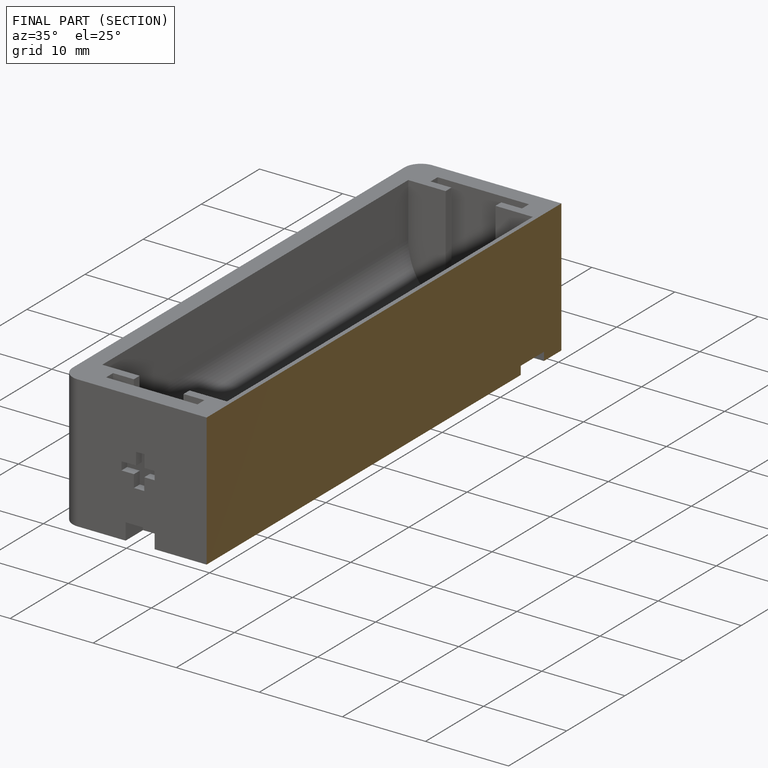
[diagram: finished part — half-section view (interior)]
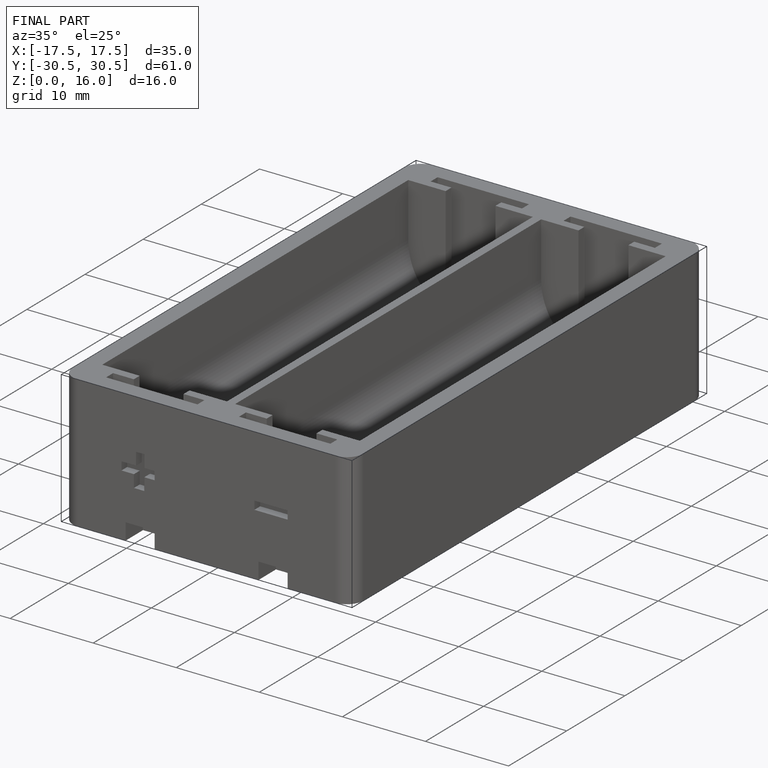
[diagram: finished part — iso view with bounding-box wireframe]
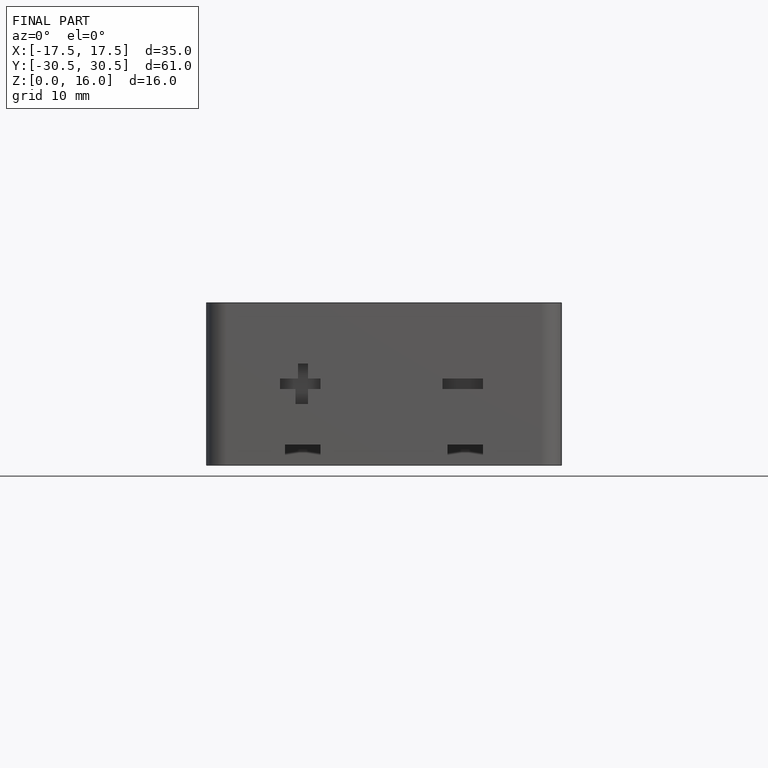
[diagram: finished part — front view with bounding-box wireframe]
